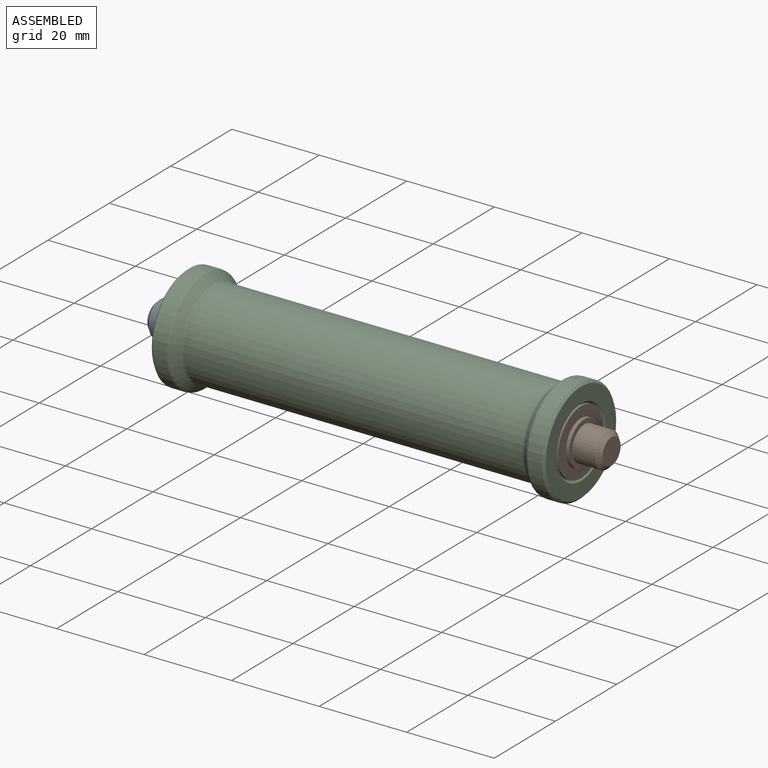
[diagram: assembled view]
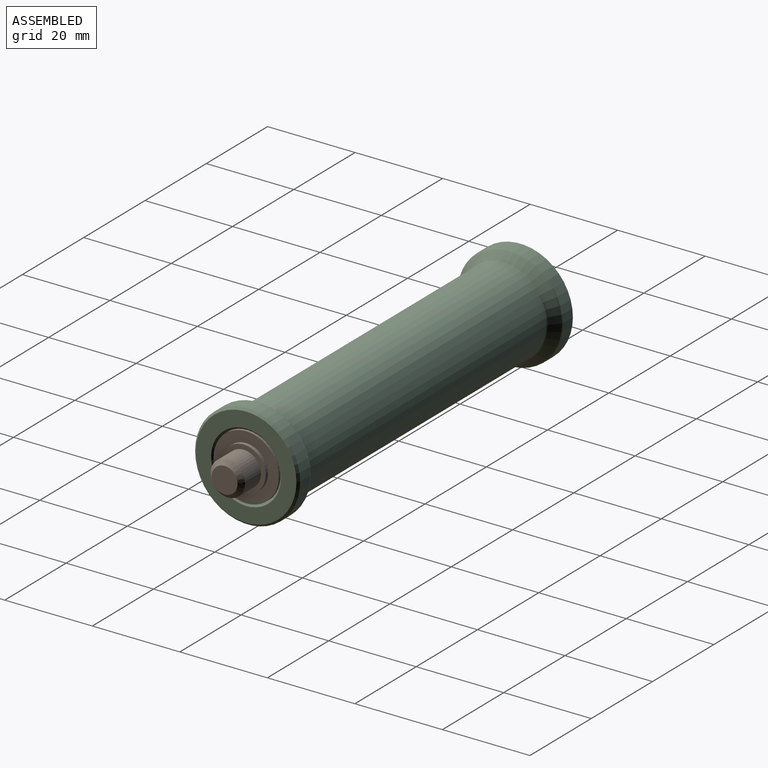
[diagram: assembled view, second angle]
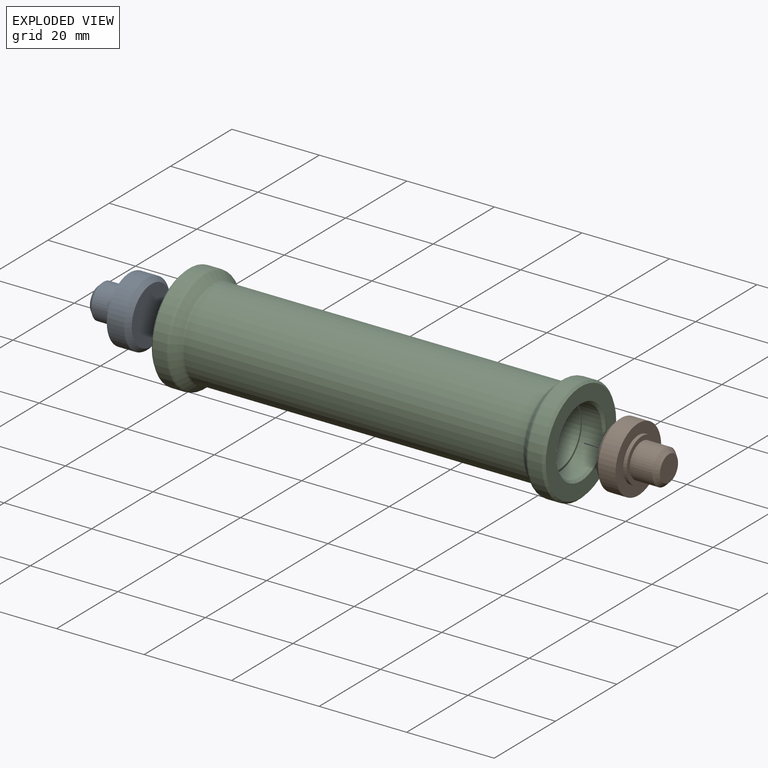
[diagram: exploded view]
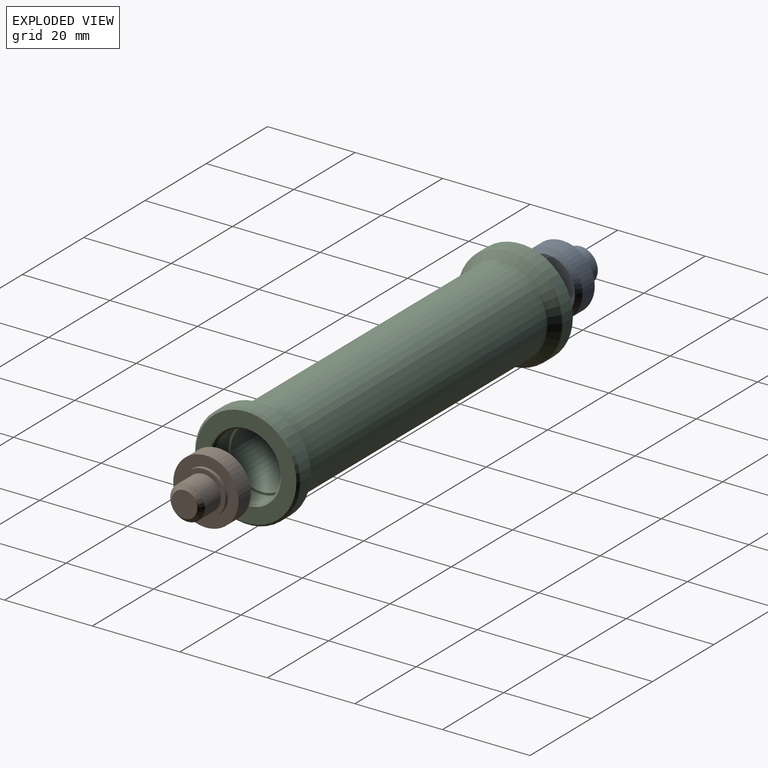
[diagram: exploded view, second angle]
ASSEMBLY  parts=3 mates=4
PART A: 9 faces, bbox 12x14.9x14.9 mm
  f0: cone r=6.95mm half-angle=45deg, axis (1,0,0), area 61.8mm2, adj f1,f2
  f1: cylinder r=7.45mm len=14.9mm, axis (1,0,0), area 187.2mm2, adj f0,f8
  f2: plane 12.9x12.9mm, normal (-1,0,0), area 130.7mm2, adj f0
  f3: cone r=3.45mm half-angle=45deg, axis (-1,0,0), area 30.7mm2, adj f4,f5
  f4: cylinder r=3.95mm len=7.9mm, axis (1,0,0), area 129.1mm2, adj f3,f7
  f5: plane 5.9x5.9mm, normal (1,0,0), area 27.3mm2, adj f3
  f6: cylinder r=5mm len=10mm, axis (1,0,0), area 25.1mm2, adj f7,f8
  f7: plane 10x10mm, normal (1,0,0), area 29.5mm2, adj f4,f6
  f8: plane 14.9x14.9mm, normal (1,0,0), area 95.8mm2, adj f1,f6
PART B: same geometry as A
PART C: 19 faces, bbox 90x26x26 mm
  f0: cone r=7.75mm half-angle=45deg, axis (1,0,0), area 34.4mm2, adj f1,f2
  f1: cylinder r=7.5mm len=15mm, axis (-1,0,0), area 212.1mm2, adj f0,f5
  f2: plane 23x23mm, normal (1,0,0), area 214.4mm2, adj f0,f16
  f3: cylinder r=7mm len=80mm, axis (1,0,0), area 3518.6mm2, adj f4,f5
  f4: plane 15x15mm, normal (-1,0,0), area 22.8mm2, adj f3,f15
  f5: plane 15x15mm, normal (1,0,0), area 22.8mm2, adj f1,f3
  f6: torus R=10.8mm, axis (-1,0,0), area 39.8mm2, adj f7,f8
  f7: cylinder r=10mm len=77.34mm, axis (-1,0,0), area 4859.2mm2, adj f6,f9
  f8: cone r=11mm half-angle=45deg, axis (1,0,0), area 149.7mm2, adj f6,f13
  f9: torus R=10.8mm, axis (1,0,0), area 39.8mm2, adj f7,f10
  f10: cone r=11mm half-angle=45deg, axis (-1,0,0), area 149.7mm2, adj f9,f11
  f11: torus R=11.2mm, axis (1,0,0), area 47.1mm2, adj f10,f12
  f12: cylinder r=12mm len=24mm, axis (1,0,0), area 238.9mm2, adj f11,f17
  f13: torus R=11.2mm, axis (-1,0,0), area 47.1mm2, adj f8,f14
  f14: cylinder r=12mm len=24mm, axis (1,0,0), area 238.9mm2, adj f13,f16
  f15: cylinder r=7.5mm len=15mm, axis (-1,0,0), area 235.6mm2, adj f4,f18
  f16: cone r=11.75mm half-angle=45deg, axis (-1,0,0), area 52.2mm2, adj f2,f14
  f17: cone r=11.75mm half-angle=45deg, axis (1,0,0), area 52.2mm2, adj f12,f18
  f18: plane 23x23mm, normal (-1,0,0), area 238.8mm2, adj f15,f17
PLACE A rot(axis=(0,0,1),180deg) t=(24.8,0,0)mm
PLACE B t=(104.8,0,0)mm
PLACE C t=(19.8,0,0)mm
MATE cylindrical B.f0 <-> C.f0  axis (1,0,0) through (105.8,0,0)mm
MATE planar C.f0 <-> B.f0  axis (1,0,0) through (109.8,0,0)mm
MATE cylindrical A.f0 <-> C.f0  axis (-1,0,0) through (21.8,0,0)mm
MATE planar A.f0 <-> C.f0  axis (-1,0,0) through (19.8,0,0)mm
